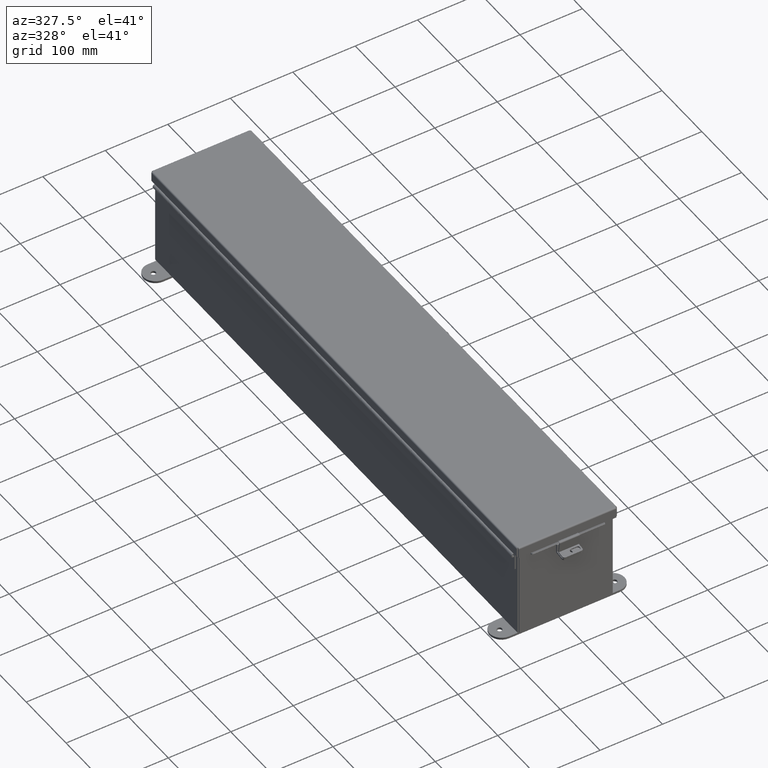
[diagram: clean part render]
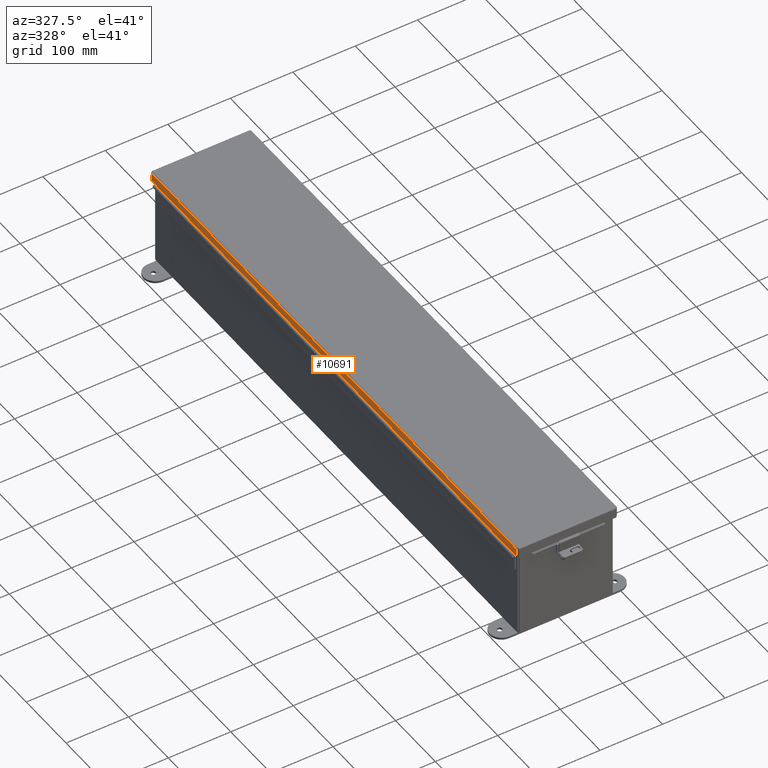
[diagram: same view with one face highlighted and labeled with its STEP entity id]
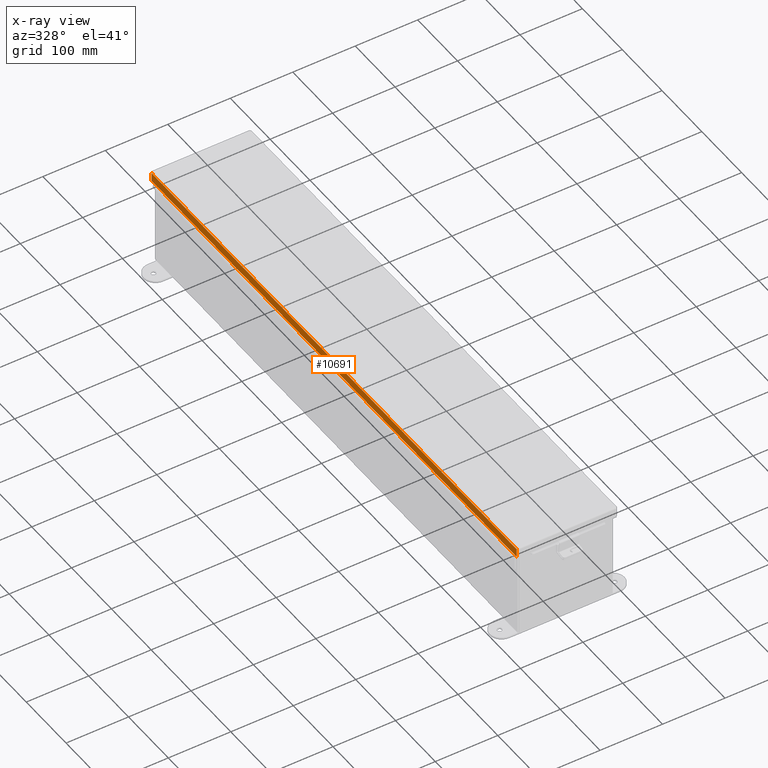
[diagram: x-ray of the same camera — body ghosted, the highlighted face saturated]
A machine part, auxiliary view. The second image highlights one B-rep face of the part: STEP entity #10691.
The next image is the same camera in x-ray: the body ghosted, the highlighted face saturated — about 0% of this face is hidden behind the body in this view.
In plain terms, the highlighted planar face has unit normal (1, -0, -0).
Its self-contained STEP definition (entity closure, byte-faithful):
#2163 = DIRECTION ( 'NONE',  ( 3.971430846686186800E-015, 5.312485158597730400E-030, 1.000000000000000000 ) ) ;
#3138 = LINE ( 'NONE', #24259, #26823 ) ;
#3719 = EDGE_CURVE ( 'NONE', #19448, #25955, #14832, .T. ) ;
#3944 = CARTESIAN_POINT ( 'NONE',  ( 3.156250000000010200, 18.07447893218813200, -1.311287036958846300E-014 ) ) ;
#6751 = FACE_OUTER_BOUND ( 'NONE', #22661, .T. ) ;
#8221 = DIRECTION ( 'NONE',  ( 3.971430846686186800E-015, 5.312485158597730400E-030, 1.000000000000000000 ) ) ;
#8741 = VECTOR ( 'NONE', #22274, 39.37007874015748100 ) ;
#9179 = DIRECTION ( 'NONE',  ( 6.825164035529006100E-030, -1.000000000000000000, -5.324811110241829700E-030 ) ) ;
#10691 = ADVANCED_FACE ( 'NONE', ( #6751 ), #11252, .F. ) ;
#11011 = ORIENTED_EDGE ( 'NONE', *, *, #26815, .F. ) ;
#11252 = PLANE ( 'NONE',  #22052 ) ;
#11544 = ORIENTED_EDGE ( 'NONE', *, *, #27589, .F. ) ;
#12568 = EDGE_CURVE ( 'NONE', #25955, #27866, #19148, .T. ) ;
#13018 = VECTOR ( 'NONE', #16748, 39.37007874015748100 ) ;
#14244 = CARTESIAN_POINT ( 'NONE',  ( 3.156250000000010200, -18.07447893218813600, 0.01299999999999901400 ) ) ;
#14681 = CARTESIAN_POINT ( 'NONE',  ( 3.156250000000012400, -18.07447893218813600, 0.5502999999999999000 ) ) ;
#14832 = LINE ( 'NONE', #3944, #8741 ) ;
#15881 = DIRECTION ( 'NONE',  ( -1.000000000000000000, 6.877242124709736100E-030, 3.971430846686186800E-015 ) ) ;
#16748 = DIRECTION ( 'NONE',  ( 6.825164035529006100E-030, -1.000000000000000000, -5.324811110241829700E-030 ) ) ;
#19148 = LINE ( 'NONE', #23554, #13018 ) ;
#19448 = VERTEX_POINT ( 'NONE', #23250 ) ;
#21604 = ORIENTED_EDGE ( 'NONE', *, *, #3719, .T. ) ;
#22043 = ORIENTED_EDGE ( 'NONE', *, *, #12568, .T. ) ;
#22052 = AXIS2_PLACEMENT_3D ( 'NONE', #29626, #15881, #2163 ) ;
#22274 = DIRECTION ( 'NONE',  ( 3.971430846686186800E-015, 5.312485158597730400E-030, 1.000000000000000000 ) ) ;
#22661 = EDGE_LOOP ( 'NONE', ( #11544, #21604, #22043, #11011 ) ) ;
#22815 = CARTESIAN_POINT ( 'NONE',  ( 3.156250000000010200, -18.15625000000000000, 0.01300000000000885000 ) ) ;
#23250 = CARTESIAN_POINT ( 'NONE',  ( 3.156250000000010200, 18.07447893218813600, 0.01300000000000010700 ) ) ;
#23398 = CARTESIAN_POINT ( 'NONE',  ( 3.156250000000012400, 18.07447893218813600, 0.5502999999999999000 ) ) ;
#23523 = LINE ( 'NONE', #22815, #28907 ) ;
#23554 = CARTESIAN_POINT ( 'NONE',  ( 3.156250000000012400, 2.667820306312757000E-018, 0.5502999999999999000 ) ) ;
#24259 = CARTESIAN_POINT ( 'NONE',  ( 3.156250000000010200, -18.07447893218813600, -1.092739197465705300E-015 ) ) ;
#25955 = VERTEX_POINT ( 'NONE', #23398 ) ;
#26556 = VERTEX_POINT ( 'NONE', #14244 ) ;
#26815 = EDGE_CURVE ( 'NONE', #26556, #27866, #3138, .T. ) ;
#26823 = VECTOR ( 'NONE', #8221, 39.37007874015748100 ) ;
#27589 = EDGE_CURVE ( 'NONE', #19448, #26556, #23523, .T. ) ;
#27866 = VERTEX_POINT ( 'NONE', #14681 ) ;
#28907 = VECTOR ( 'NONE', #9179, 39.37007874015748100 ) ;
#29626 = CARTESIAN_POINT ( 'NONE',  ( 3.156250000000010200, 2.667820306312757000E-018, -1.202013117212275700E-014 ) ) ;